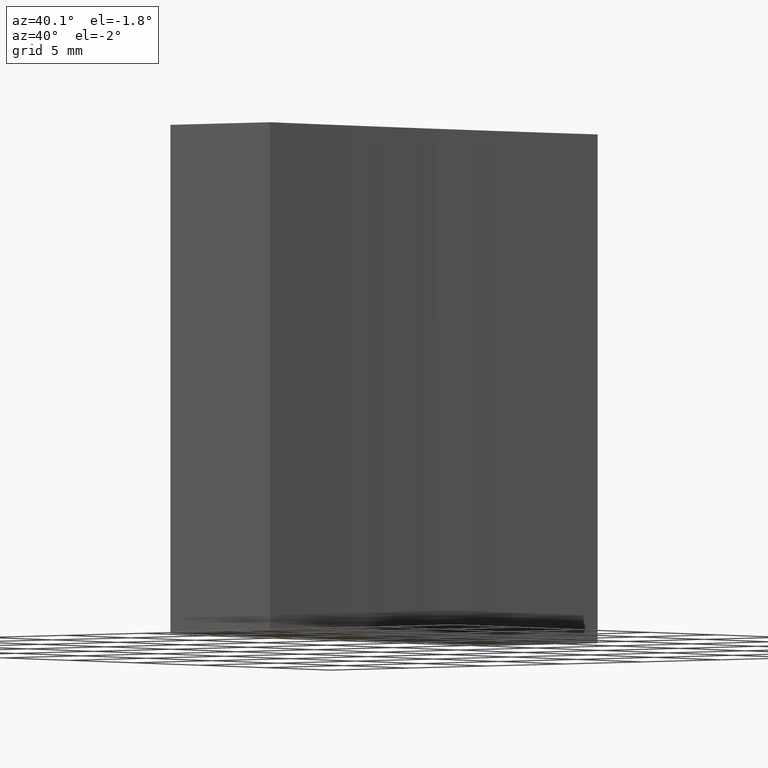
[diagram: clean part render]
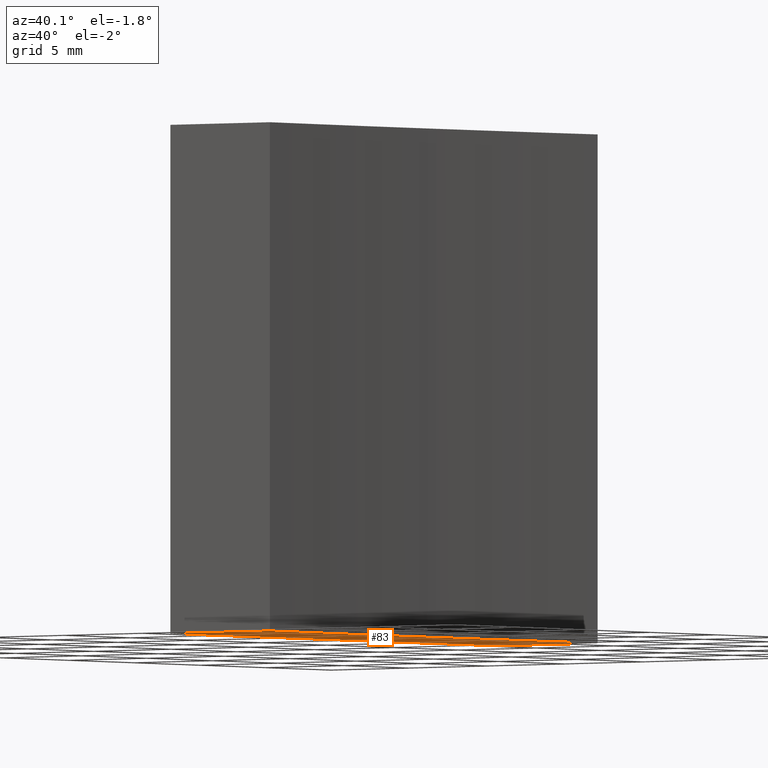
[diagram: same view with one face highlighted and labeled with its STEP entity id]
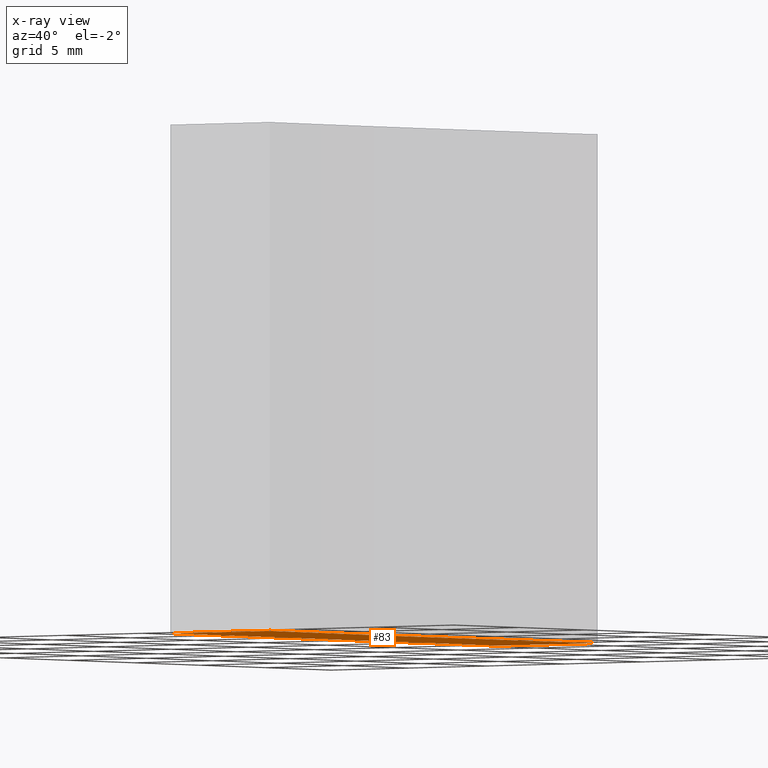
[diagram: x-ray of the same camera — body ghosted, the highlighted face saturated]
A machine part, auxiliary view. The second image highlights one B-rep face of the part: STEP entity #83.
The next image is the same camera in x-ray: the body ghosted, the highlighted face saturated — about 0% of this face is hidden behind the body in this view.
In plain terms, the highlighted planar face has unit normal (0, 0, 1).
Its self-contained STEP definition (entity closure, byte-faithful):
#3 = CARTESIAN_POINT ( 'NONE',  ( 291.0981428478888800, 79.35792926776707600, 0.0000000000000000000 ) ) ;
#4 = DIRECTION ( 'NONE',  ( -1.000000000000000000, -0.0000000000000000000, -0.0000000000000000000 ) ) ;
#5 = VECTOR ( 'NONE', #77, 1000.000000000000000 ) ;
#8 = VERTEX_POINT ( 'NONE', #39 ) ;
#21 = ORIENTED_EDGE ( 'NONE', *, *, #85, .F. ) ;
#23 = DIRECTION ( 'NONE',  ( 1.000000000000000000, 9.771549775893063200E-015, -0.0000000000000000000 ) ) ;
#26 = CIRCLE ( 'NONE', #189, 200.0000000000000000 ) ;
#29 = CARTESIAN_POINT ( 'NONE',  ( 490.7071356312802700, 66.85792926776710500, 0.0000000000000000000 ) ) ;
#39 = CARTESIAN_POINT ( 'NONE',  ( 290.7071356312802700, 66.85792926776710500, 0.0000000000000000000 ) ) ;
#42 = CARTESIAN_POINT ( 'NONE',  ( 284.7071356312820900, 54.35792926776707600, 0.0000000000000000000 ) ) ;
#51 = VERTEX_POINT ( 'NONE', #3 ) ;
#60 = CARTESIAN_POINT ( 'NONE',  ( 284.7071356312820900, 66.85792926776707600, 0.0000000000000000000 ) ) ;
#61 = CARTESIAN_POINT ( 'NONE',  ( 490.7071356312802700, 66.85792926776710500, 0.0000000000000000000 ) ) ;
#62 = VERTEX_POINT ( 'NONE', #127 ) ;
#70 = EDGE_CURVE ( 'NONE', #210, #8, #224, .T. ) ;
#71 = LINE ( 'NONE', #108, #217 ) ;
#77 = DIRECTION ( 'NONE',  ( -0.0000000000000000000, -1.000000000000000000, -0.0000000000000000000 ) ) ;
#78 = CARTESIAN_POINT ( 'NONE',  ( 490.7071356312802700, 66.85792926776710500, 0.0000000000000000000 ) ) ;
#79 = EDGE_CURVE ( 'NONE', #51, #62, #71, .T. ) ;
#81 = DIRECTION ( 'NONE',  ( -0.0000000000000000000, -0.0000000000000000000, -1.000000000000000000 ) ) ;
#83 = ADVANCED_FACE ( 'NONE', ( #123 ), #227, .F. ) ;
#85 = EDGE_CURVE ( 'NONE', #62, #130, #100, .T. ) ;
#93 = DIRECTION ( 'NONE',  ( -0.0000000000000000000, -0.0000000000000000000, -1.000000000000000000 ) ) ;
#96 = DIRECTION ( 'NONE',  ( 1.000000000000000000, 0.0000000000000000000, 0.0000000000000000000 ) ) ;
#100 = LINE ( 'NONE', #60, #5 ) ;
#108 = CARTESIAN_POINT ( 'NONE',  ( 284.7071356312820900, 79.35792926776707600, 0.0000000000000000000 ) ) ;
#109 = VECTOR ( 'NONE', #23, 1000.000000000000000 ) ;
#111 = CARTESIAN_POINT ( 'NONE',  ( 291.0981428478888800, 54.35792926776720400, 0.0000000000000000000 ) ) ;
#123 = FACE_OUTER_BOUND ( 'NONE', #171, .T. ) ;
#127 = CARTESIAN_POINT ( 'NONE',  ( 284.7071356312820900, 79.35792926776707600, 0.0000000000000000000 ) ) ;
#128 = DIRECTION ( 'NONE',  ( 1.000000000000000000, 0.0000000000000000000, 0.0000000000000000000 ) ) ;
#130 = VERTEX_POINT ( 'NONE', #42 ) ;
#137 = ORIENTED_EDGE ( 'NONE', *, *, #70, .F. ) ;
#143 = LINE ( 'NONE', #164, #109 ) ;
#155 = AXIS2_PLACEMENT_3D ( 'NONE', #78, #93, #128 ) ;
#163 = ORIENTED_EDGE ( 'NONE', *, *, #79, .F. ) ;
#164 = CARTESIAN_POINT ( 'NONE',  ( 291.0981428478888800, 54.35792926776714000, 0.0000000000000000000 ) ) ;
#165 = AXIS2_PLACEMENT_3D ( 'NONE', #61, #225, #201 ) ;
#171 = EDGE_LOOP ( 'NONE', ( #237, #21, #163, #200, #137 ) ) ;
#173 = EDGE_CURVE ( 'NONE', #130, #210, #143, .T. ) ;
#189 = AXIS2_PLACEMENT_3D ( 'NONE', #29, #81, #96 ) ;
#200 = ORIENTED_EDGE ( 'NONE', *, *, #234, .F. ) ;
#201 = DIRECTION ( 'NONE',  ( 1.000000000000000000, 0.0000000000000000000, -0.0000000000000000000 ) ) ;
#210 = VERTEX_POINT ( 'NONE', #111 ) ;
#217 = VECTOR ( 'NONE', #4, 1000.000000000000000 ) ;
#224 = CIRCLE ( 'NONE', #155, 200.0000000000000000 ) ;
#225 = DIRECTION ( 'NONE',  ( 0.0000000000000000000, 0.0000000000000000000, 1.000000000000000000 ) ) ;
#227 = PLANE ( 'NONE',  #165 ) ;
#234 = EDGE_CURVE ( 'NONE', #8, #51, #26, .T. ) ;
#237 = ORIENTED_EDGE ( 'NONE', *, *, #173, .F. ) ;